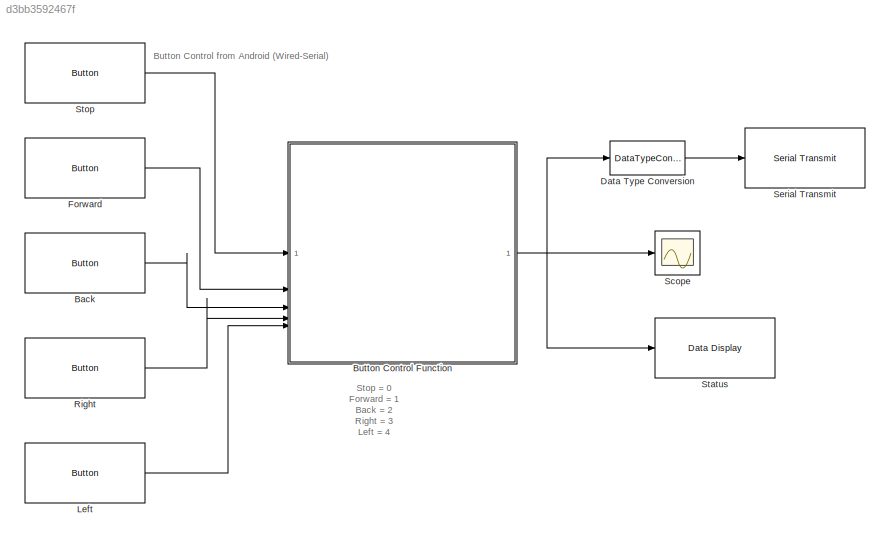
MODEL slx_d3bb3592467f
KIND model
CONFIG AbsTol = auto
CONFIG EnableMultiTasking = off
CONFIG FixedStep = 0.1
CONFIG MaxStep = auto
CONFIG MinStep = auto
CONFIG RelTol = 1e-3
CONFIG SampleTimeConstraint = Unconstrained
CONFIG SolverName = FixedStepDiscrete
CONFIG StartTime = 0.0
CONFIG StopTime = 10.0
BLOCK [Reference] Back  REF=androiduilib/Button
  SourceBlock = androiduilib/Button
  SourceType = codertarget.internal.androidButton
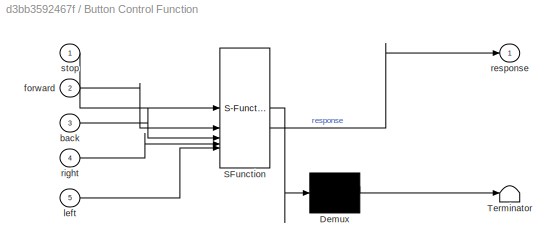
BLOCK [SubSystem] Button Control Function
  ErrorFcn = Stateflow.Translate.translate
  LibrarySourceBlock = simulink/User-Defined\nFunctions/MATLAB Function
  PermitHierarchicalResolution = ExplicitOnly
  SFBlockType = MATLAB Function
  TreatAsAtomicUnit = on
BLOCK [Demux] Button Control Function/ Demux 
  Outputs = 1
BLOCK [S-Function] Button Control Function/ SFunction 
  EnableBusSupport = on
  FunctionName = sf_sfun
  PortCounts = [5 2]
  SFcnIsStateOwnerBlock = off
  SFunctionDeploymentMode = off
  Tag = Stateflow S-Function 2
BLOCK [Terminator] Button Control Function/ Terminator 
BLOCK [Inport] Button Control Function/back
  Port = 3
BLOCK [Inport] Button Control Function/forward
  Port = 2
BLOCK [Inport] Button Control Function/left
  Port = 5
BLOCK [Outport] Button Control Function/response
BLOCK [Inport] Button Control Function/right
  Port = 4
BLOCK [Inport] Button Control Function/stop
BLOCK [DataTypeConversion] Data Type Conversion
  OutDataTypeStr = uint8
  RndMeth = Floor
  SaturateOnIntegerOverflow = off
BLOCK [Reference] Forward  REF=androiduilib/Button
  SourceBlock = androiduilib/Button
  SourceType = codertarget.internal.androidButton
BLOCK [Reference] Left  REF=androiduilib/Button
  SourceBlock = androiduilib/Button
  SourceType = codertarget.internal.androidButton
BLOCK [Reference] Right  REF=androiduilib/Button
  SourceBlock = androiduilib/Button
  SourceType = codertarget.internal.androidButton
BLOCK [Scope] Scope
  Floating = off
  NumInputPorts = 1
  ScopeSpecificationString = Simulink.scopes.TimeScopeBlockCfg('CurrentConfiguration', extmgr.ConfigurationSet(extmgr.Configuration('Core','General UI',true),extmgr.Configuration('Core','Source UI',true),extmgr.Configuration('Sources','WiredSimulink',true),extmgr.Configuration('Visuals','Time Domain',true,'SerializedDisplays',{struct('MinYLimReal','-180','MaxYLimReal','180','YLabelReal','','MinYLimMag','0.00000','MaxYLimMag',...<+1375ch>
BLOCK [Reference] Serial Transmit  REF=androidcommunicationlib/Serial Transmit
  SourceBlock = androidcommunicationlib/Serial Transmit
  SourceType = codertarget.internal.androidSerialTransmit
BLOCK [Reference] Status  REF=androiduilib/Data Display
  SourceBlock = androiduilib/Data Display
  SourceType = codertarget.internal.androidDataDisplay
BLOCK [Reference] Stop  REF=androiduilib/Button
  SourceBlock = androiduilib/Button
  SourceType = codertarget.internal.androidButton
ANNOTATION (root): Stop = 0 Forward = 1 Back = 2 Right = 3 Left = 4
ANNOTATION (root): Button Control from Android (Wired-Serial)
LINE Back:1 -> Button Control Function:3
NET Button Control Function:1 -> Data Type Conversion:1, Scope:1, Status:1
LINE Data Type Conversion:1 -> Serial Transmit:1
LINE Forward:1 -> Button Control Function:2
LINE Left:1 -> Button Control Function:5
LINE Right:1 -> Button Control Function:4
LINE Stop:1 -> Button Control Function:1
note: NET lines group one-source signal fan-out (src -> all destinations, sorted); 1:1 wires keep LINE
CHART Button Control Function states=1 transitions=1
  STATE_LABEL 'eML_blk_kernel()'
  STATE_LABEL 'SCRIPT:\n%Function to control Arduino robot using the android device\n%Robot Controls:\n%response = 0 --> Stop\n%response = 1 --> Forward\n%response = 2 --> Reverse\n%response = 3 --> Right\n%response = 4 --> Left\n\nfunction response = ButtonControl(stop,forward,back,right,left)\nButtons=[stop,forward,back,right,left];\nif sum(Buttons)==1\n    if stop == 1\n        response = 0;\n    elseif forward==1\n        ...<+195ch>'
CHART  states=0 transitions=0
